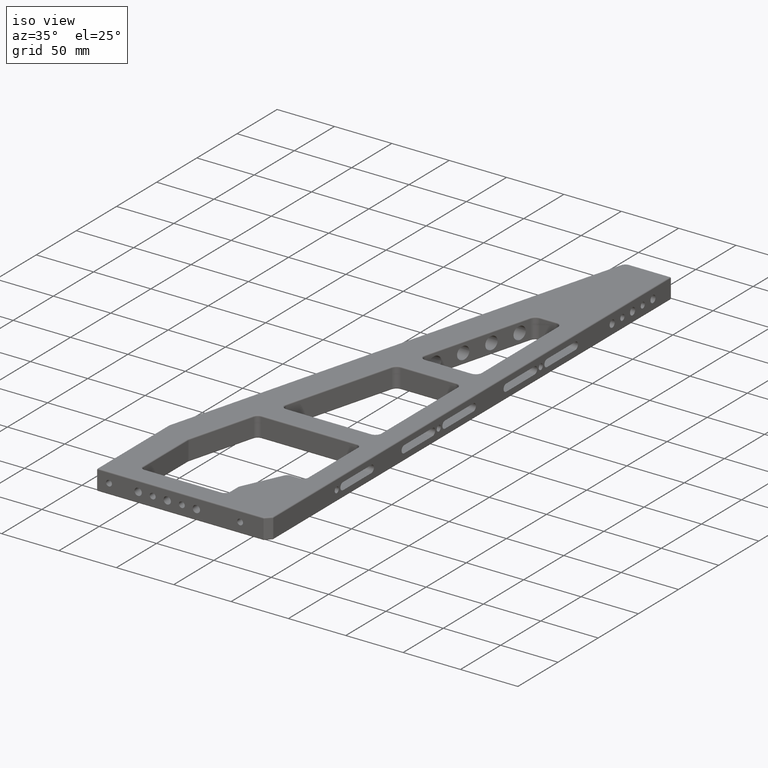
[diagram: clean part render]
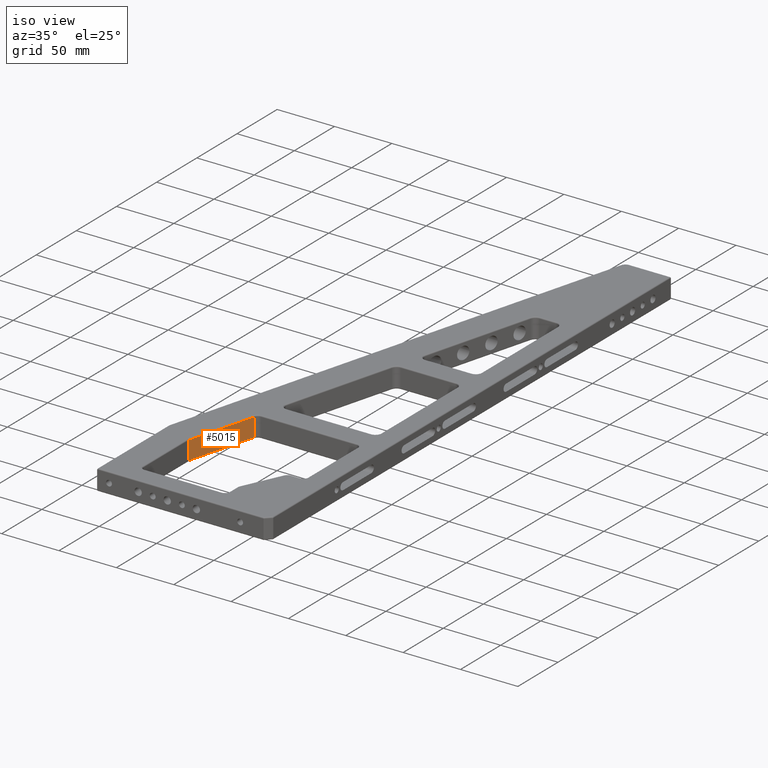
[diagram: same view with one face highlighted and labeled with its STEP entity id]
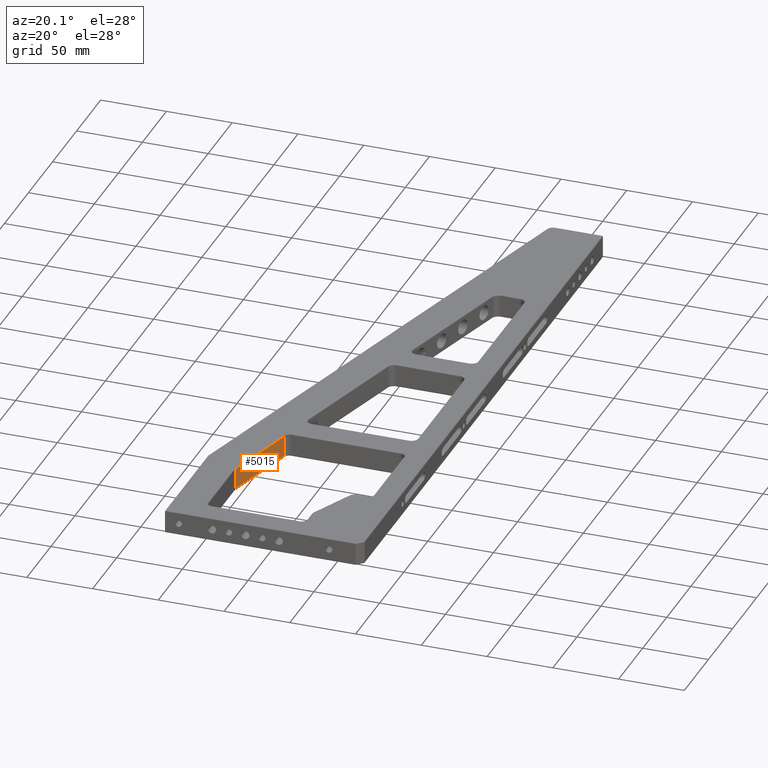
[diagram: same view with one face highlighted and labeled with its STEP entity id]
A machine part, iso view. The second image highlights one B-rep face of the part: STEP entity #5015.
A second angle (auxiliary view) of the same face is appended — the face is thin or edge-on in the first view.
In plain terms, the highlighted planar face has unit normal (-0.9659, 0.2588, 0).
Its self-contained STEP definition (entity closure, byte-faithful):
#22 = CARTESIAN_POINT ( 'NONE',  ( 25.13629669484372500, 78.50866619006046700, 17.00000000000001400 ) ) ;
#179 = DIRECTION ( 'NONE',  ( -0.9659258262890692000, 0.2588190451025177400, 0.0000000000000000000 ) ) ;
#663 = DIRECTION ( 'NONE',  ( -0.2588190451025177400, -0.9659258262890692000, 0.0000000000000000000 ) ) ;
#686 = ORIENTED_EDGE ( 'NONE', *, *, #6782, .T. ) ;
#820 = CARTESIAN_POINT ( 'NONE',  ( 40.81845457748897800, 137.0352761804100800, 17.00000000000001400 ) ) ;
#878 = ORIENTED_EDGE ( 'NONE', *, *, #2902, .T. ) ;
#1230 = CARTESIAN_POINT ( 'NONE',  ( 25.00000000000000000, 77.99999999999998600, 1.000000000000000900 ) ) ;
#1654 = CARTESIAN_POINT ( 'NONE',  ( 40.81845457748897800, 137.0352761804100800, 1.000000000000000900 ) ) ;
#1660 = ORIENTED_EDGE ( 'NONE', *, *, #2921, .T. ) ;
#2486 = VECTOR ( 'NONE', #4365, 1000.000000000000000 ) ;
#2748 = CARTESIAN_POINT ( 'NONE',  ( 25.13629669484372500, 78.50866619006046700, 0.0000000000000000000 ) ) ;
#2763 = AXIS2_PLACEMENT_3D ( 'NONE', #3370, #179, #3911 ) ;
#2814 = CARTESIAN_POINT ( 'NONE',  ( 25.13629669484372500, 78.50866619006046700, 17.00000000000001400 ) ) ;
#2826 = LINE ( 'NONE', #4965, #5515 ) ;
#2891 = VECTOR ( 'NONE', #4985, 999.9999999999998900 ) ;
#2902 = EDGE_CURVE ( 'NONE', #4899, #4015, #2826, .T. ) ;
#2921 = EDGE_CURVE ( 'NONE', #4470, #3383, #5352, .T. ) ;
#3370 = CARTESIAN_POINT ( 'NONE',  ( 25.00000000000000000, 77.99999999999998600, -2.000000000000001800 ) ) ;
#3383 = VERTEX_POINT ( 'NONE', #5376 ) ;
#3385 = VECTOR ( 'NONE', #663, 999.9999999999998900 ) ;
#3459 = EDGE_LOOP ( 'NONE', ( #1660, #6580, #878, #686 ) ) ;
#3911 = DIRECTION ( 'NONE',  ( -0.2588190451025176900, -0.9659258262890690900, 0.0000000000000000000 ) ) ;
#4015 = VERTEX_POINT ( 'NONE', #820 ) ;
#4365 = DIRECTION ( 'NONE',  ( -0.0000000000000000000, 0.0000000000000000000, -1.000000000000000000 ) ) ;
#4470 = VERTEX_POINT ( 'NONE', #22 ) ;
#4675 = DIRECTION ( 'NONE',  ( 0.0000000000000000000, -0.0000000000000000000, 1.000000000000000000 ) ) ;
#4823 = LINE ( 'NONE', #2814, #3385 ) ;
#4899 = VERTEX_POINT ( 'NONE', #1654 ) ;
#4965 = CARTESIAN_POINT ( 'NONE',  ( 40.81845457748897800, 137.0352761804100800, 18.00000000000001400 ) ) ;
#4968 = PLANE ( 'NONE',  #2763 ) ;
#4985 = DIRECTION ( 'NONE',  ( 0.2588190451025177400, 0.9659258262890692000, -0.0000000000000000000 ) ) ;
#5015 = ADVANCED_FACE ( 'NONE', ( #6577 ), #4968, .F. ) ;
#5352 = LINE ( 'NONE', #2748, #2486 ) ;
#5376 = CARTESIAN_POINT ( 'NONE',  ( 25.13629669484372500, 78.50866619006046700, 1.000000000000000900 ) ) ;
#5515 = VECTOR ( 'NONE', #4675, 1000.000000000000000 ) ;
#5746 = LINE ( 'NONE', #1230, #2891 ) ;
#6577 = FACE_OUTER_BOUND ( 'NONE', #3459, .T. ) ;
#6580 = ORIENTED_EDGE ( 'NONE', *, *, #6796, .T. ) ;
#6782 = EDGE_CURVE ( 'NONE', #4015, #4470, #4823, .T. ) ;
#6796 = EDGE_CURVE ( 'NONE', #3383, #4899, #5746, .T. ) ;